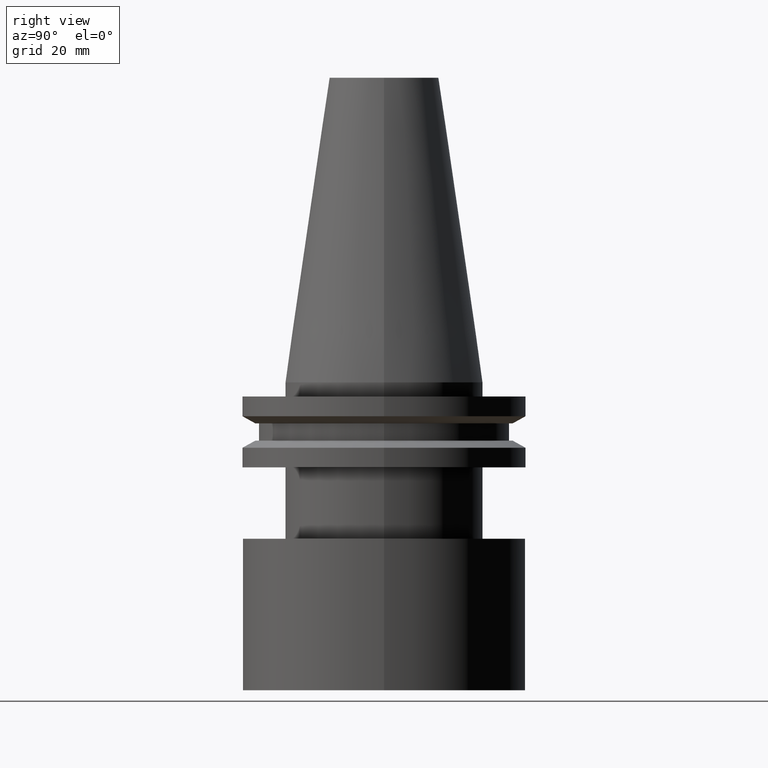
[diagram: clean part render]
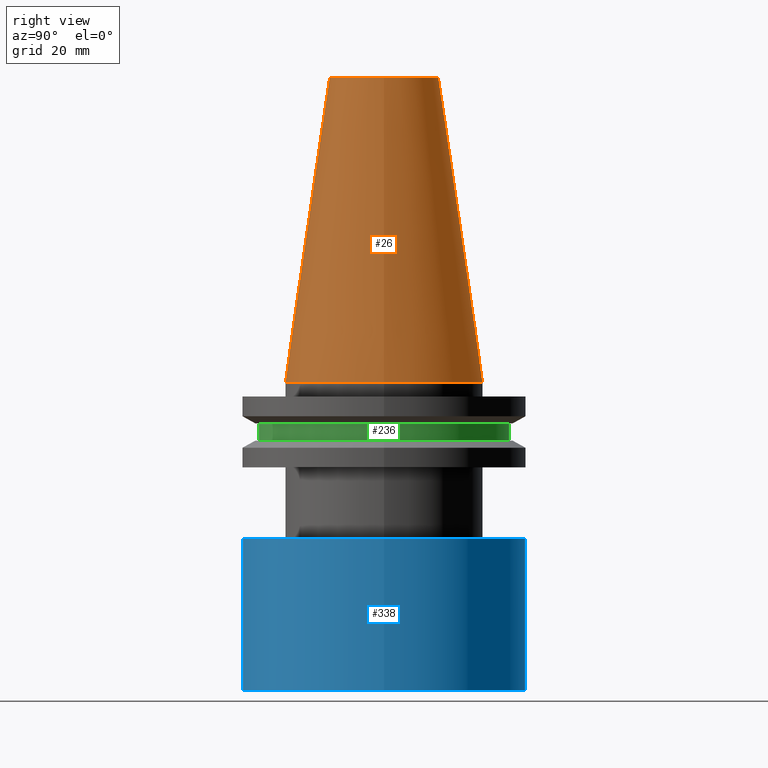
[diagram: same view with three faces highlighted in distinct colors, each labeled with its STEP entity id]
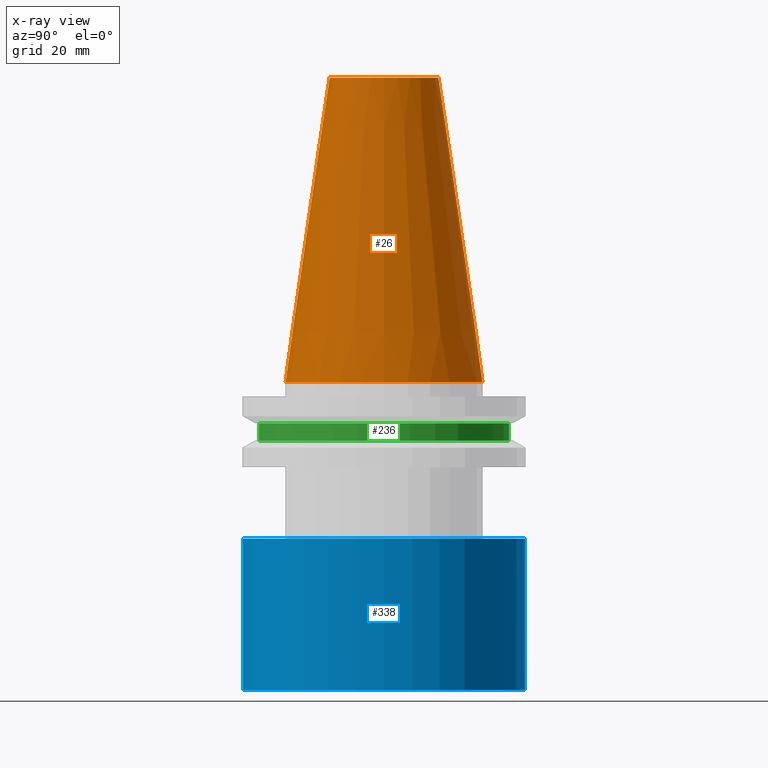
[diagram: x-ray of the same camera — body ghosted, the three highlighted faces saturated]
A machine part, right view with three faces highlighted in distinct colors.
The next image is the same camera in x-ray (body ghosted, the three faces saturated) — at least one of them is partly hidden behind the body in this view.
Their STEP definitions:

[orange] entity #26 — the highlighted conical surface has half-angle 8.297 deg.
#2 = EDGE_LOOP ( 'NONE', ( #271 ) ) ;
#26 = ADVANCED_FACE ( 'NONE', ( #347, #188 ), #66, .T. ) ;
#42 = CIRCLE ( 'NONE', #334, 22.22500000000000142 ) ;
#54 = EDGE_LOOP ( 'NONE', ( #345 ) ) ;
#64 = CARTESIAN_POINT ( 'NONE',  ( 0.000000000000000000, 0.000000000000000000, 0.000000000000000000 ) ) ;
#66 = CONICAL_SURFACE ( 'NONE', #341, 22.22500000000000142, 0.1448138465474119174 ) ;
#69 = DIRECTION ( 'NONE',  ( -1.000000000000000000, 0.000000000000000000, 0.000000000000000000 ) ) ;
#75 = VERTEX_POINT ( 'NONE', #389 ) ;
#79 = CIRCLE ( 'NONE', #122, 12.27178102086201150 ) ;
#122 = AXIS2_PLACEMENT_3D ( 'NONE', #145, #267, #321 ) ;
#145 = CARTESIAN_POINT ( 'NONE',  ( 0.000000000000000000, 0.000000000000000000, 68.25000000000000000 ) ) ;
#170 = EDGE_CURVE ( 'NONE', #75, #75, #79, .T. ) ;
#188 = FACE_OUTER_BOUND ( 'NONE', #2, .T. ) ;
#190 = DIRECTION ( 'NONE',  ( 0.000000000000000000, 0.000000000000000000, -1.000000000000000000 ) ) ;
#226 = CARTESIAN_POINT ( 'NONE',  ( 22.22500000000000142, 0.000000000000000000, 0.000000000000000000 ) ) ;
#228 = EDGE_CURVE ( 'NONE', #391, #391, #42, .T. ) ;
#267 = DIRECTION ( 'NONE',  ( -0.000000000000000000, -0.000000000000000000, 1.000000000000000000 ) ) ;
#271 = ORIENTED_EDGE ( 'NONE', *, *, #228, .T. ) ;
#321 = DIRECTION ( 'NONE',  ( 1.000000000000000000, 0.000000000000000000, 0.000000000000000000 ) ) ;
#333 = DIRECTION ( 'NONE',  ( 1.000000000000000000, 0.000000000000000000, 0.000000000000000000 ) ) ;
#334 = AXIS2_PLACEMENT_3D ( 'NONE', #368, #400, #333 ) ;
#341 = AXIS2_PLACEMENT_3D ( 'NONE', #64, #190, #69 ) ;
#345 = ORIENTED_EDGE ( 'NONE', *, *, #170, .F. ) ;
#347 = FACE_BOUND ( 'NONE', #54, .T. ) ;
#368 = CARTESIAN_POINT ( 'NONE',  ( 0.000000000000000000, 0.000000000000000000, 0.000000000000000000 ) ) ;
#389 = CARTESIAN_POINT ( 'NONE',  ( 12.27178102086201150, 0.000000000000000000, 68.25000000000000000 ) ) ;
#391 = VERTEX_POINT ( 'NONE', #226 ) ;
#400 = DIRECTION ( 'NONE',  ( -0.000000000000000000, -0.000000000000000000, 1.000000000000000000 ) ) ;

[blue] entity #338 — the highlighted cylindrical surface (bore or boss wall) has radius 31.635 mm, axis along (-0, -0, 1).
#16 = EDGE_CURVE ( 'NONE', #187, #187, #314, .T. ) ;
#29 = CARTESIAN_POINT ( 'NONE',  ( 0.000000000000000000, 0.000000000000000000, -69.00000000000000000 ) ) ;
#35 = ORIENTED_EDGE ( 'NONE', *, *, #16, .F. ) ;
#90 = CARTESIAN_POINT ( 'NONE',  ( 31.63500000000000512, 0.000000000000000000, -35.04999999999999716 ) ) ;
#100 = EDGE_LOOP ( 'NONE', ( #366 ) ) ;
#109 = CARTESIAN_POINT ( 'NONE',  ( 31.63500000000000512, 0.000000000000000000, -69.00000000000000000 ) ) ;
#118 = EDGE_LOOP ( 'NONE', ( #35 ) ) ;
#128 = CIRCLE ( 'NONE', #307, 31.63500000000000512 ) ;
#129 = DIRECTION ( 'NONE',  ( -0.000000000000000000, -0.000000000000000000, 1.000000000000000000 ) ) ;
#156 = FACE_OUTER_BOUND ( 'NONE', #100, .T. ) ;
#181 = FACE_OUTER_BOUND ( 'NONE', #118, .T. ) ;
#187 = VERTEX_POINT ( 'NONE', #90 ) ;
#220 = CYLINDRICAL_SURFACE ( 'NONE', #315, 31.63500000000000512 ) ;
#227 = CARTESIAN_POINT ( 'NONE',  ( 0.000000000000000000, 0.000000000000000000, -35.04999999999999716 ) ) ;
#244 = DIRECTION ( 'NONE',  ( 1.000000000000000000, 0.000000000000000000, 0.000000000000000000 ) ) ;
#250 = CARTESIAN_POINT ( 'NONE',  ( 0.000000000000000000, 0.000000000000000000, 0.000000000000000000 ) ) ;
#259 = DIRECTION ( 'NONE',  ( 1.000000000000000000, 0.000000000000000000, 0.000000000000000000 ) ) ;
#286 = EDGE_CURVE ( 'NONE', #324, #324, #128, .T. ) ;
#307 = AXIS2_PLACEMENT_3D ( 'NONE', #29, #403, #244 ) ;
#314 = CIRCLE ( 'NONE', #326, 31.63500000000000512 ) ;
#315 = AXIS2_PLACEMENT_3D ( 'NONE', #250, #129, #373 ) ;
#324 = VERTEX_POINT ( 'NONE', #109 ) ;
#326 = AXIS2_PLACEMENT_3D ( 'NONE', #227, #378, #259 ) ;
#338 = ADVANCED_FACE ( 'NONE', ( #181, #156 ), #220, .T. ) ;
#366 = ORIENTED_EDGE ( 'NONE', *, *, #286, .T. ) ;
#373 = DIRECTION ( 'NONE',  ( 1.000000000000000000, 0.000000000000000000, 0.000000000000000000 ) ) ;
#378 = DIRECTION ( 'NONE',  ( -0.000000000000000000, -0.000000000000000000, 1.000000000000000000 ) ) ;
#403 = DIRECTION ( 'NONE',  ( -0.000000000000000000, -0.000000000000000000, 1.000000000000000000 ) ) ;

[green] entity #236 — the highlighted cylindrical surface (bore or boss wall) has radius 28.18 mm, axis along (-0, -0, 1).
#3 = CARTESIAN_POINT ( 'NONE',  ( 0.000000000000000000, 0.000000000000000000, -13.05499999999999794 ) ) ;
#6 = EDGE_LOOP ( 'NONE', ( #62 ) ) ;
#38 = FACE_OUTER_BOUND ( 'NONE', #221, .T. ) ;
#62 = ORIENTED_EDGE ( 'NONE', *, *, #320, .T. ) ;
#99 = CARTESIAN_POINT ( 'NONE',  ( 0.000000000000000000, 0.000000000000000000, -9.204999999999991189 ) ) ;
#112 = CYLINDRICAL_SURFACE ( 'NONE', #183, 28.17999999999999972 ) ;
#134 = VERTEX_POINT ( 'NONE', #140 ) ;
#140 = CARTESIAN_POINT ( 'NONE',  ( 28.17999999999999972, 0.000000000000000000, -9.204999999999991189 ) ) ;
#183 = AXIS2_PLACEMENT_3D ( 'NONE', #233, #335, #217 ) ;
#193 = CARTESIAN_POINT ( 'NONE',  ( 28.17999999999999972, 0.000000000000000000, -13.05499999999999794 ) ) ;
#217 = DIRECTION ( 'NONE',  ( 1.000000000000000000, 0.000000000000000000, 0.000000000000000000 ) ) ;
#221 = EDGE_LOOP ( 'NONE', ( #287 ) ) ;
#231 = VERTEX_POINT ( 'NONE', #193 ) ;
#233 = CARTESIAN_POINT ( 'NONE',  ( 0.000000000000000000, 0.000000000000000000, 68.25000000000000000 ) ) ;
#236 = ADVANCED_FACE ( 'NONE', ( #38, #272 ), #112, .T. ) ;
#241 = DIRECTION ( 'NONE',  ( 1.000000000000000000, 0.000000000000000000, 0.000000000000000000 ) ) ;
#272 = FACE_OUTER_BOUND ( 'NONE', #6, .T. ) ;
#278 = DIRECTION ( 'NONE',  ( -0.000000000000000000, -0.000000000000000000, 1.000000000000000000 ) ) ;
#287 = ORIENTED_EDGE ( 'NONE', *, *, #376, .F. ) ;
#297 = AXIS2_PLACEMENT_3D ( 'NONE', #3, #337, #241 ) ;
#320 = EDGE_CURVE ( 'NONE', #231, #231, #357, .T. ) ;
#328 = AXIS2_PLACEMENT_3D ( 'NONE', #99, #278, #374 ) ;
#335 = DIRECTION ( 'NONE',  ( -0.000000000000000000, -0.000000000000000000, 1.000000000000000000 ) ) ;
#337 = DIRECTION ( 'NONE',  ( -0.000000000000000000, -0.000000000000000000, 1.000000000000000000 ) ) ;
#357 = CIRCLE ( 'NONE', #297, 28.17999999999999972 ) ;
#374 = DIRECTION ( 'NONE',  ( 1.000000000000000000, 0.000000000000000000, 0.000000000000000000 ) ) ;
#376 = EDGE_CURVE ( 'NONE', #134, #134, #402, .T. ) ;
#402 = CIRCLE ( 'NONE', #328, 28.17999999999999972 ) ;